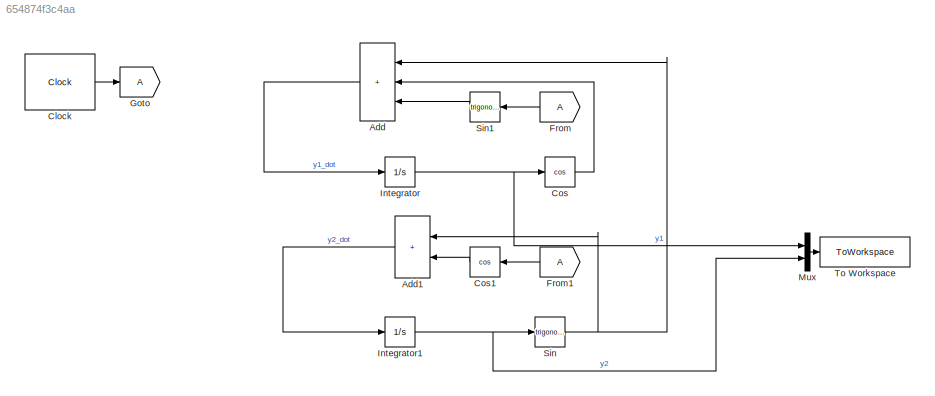
MODEL slx_654874f3c4aa
KIND model
CONFIG AbsTol = auto
CONFIG EnableMultiTasking = off
CONFIG FixedStep = auto
CONFIG MaxStep = auto
CONFIG MinStep = auto
CONFIG RelTol = 1e-3
CONFIG SampleTimeConstraint = Unconstrained
CONFIG SolverName = ode4
CONFIG StartTime = 0.0
CONFIG StopTime = 20
BLOCK [Sum] Add
  IconShape = rectangular
  Inputs = +++
  NameLocation = top
BLOCK [Sum] Add1
  IconShape = rectangular
  NameLocation = top
BLOCK [Clock] Clock
  DisplayTime = on
BLOCK [Trigonometry] Cos
  Operator = cos
BLOCK [Trigonometry] Cos1
  NameLocation = top
  Operator = cos
BLOCK [From] From
  NameLocation = top
BLOCK [From] From1
  NameLocation = top
BLOCK [Goto] Goto
BLOCK [Integrator] Integrator
  InitialCondition = 1.3818
BLOCK [Integrator] Integrator1
  InitialCondition = 1.8415
BLOCK [Mux] Mux
  DisplayOption = bar
  Inputs = 2
BLOCK [Trigonometry] Sin
BLOCK [Trigonometry] Sin1
  NameLocation = top
BLOCK [ToWorkspace] To Workspace
  FixptAsFi = on
  MaxDataPoints = inf
  SampleTime = -1
  VariableName = y_sim
LINE Add1:1 -> Integrator1:1
LINE Add:1 -> Integrator:1
LINE Clock:1 -> Goto:1
LINE Cos1:1 -> Add1:2
LINE Cos:1 -> Add:2
LINE From1:1 -> Cos1:1
LINE From:1 -> Sin1:1
NET Integrator1:1 -> Mux:2, Sin:1
NET Integrator:1 -> Cos:1, Mux:1
LINE Mux:1 -> To Workspace:1
LINE Sin1:1 -> Add:3
NET Sin:1 -> Add1:1, Add:1
note: NET lines group one-source signal fan-out (src -> all destinations, sorted); 1:1 wires keep LINE
